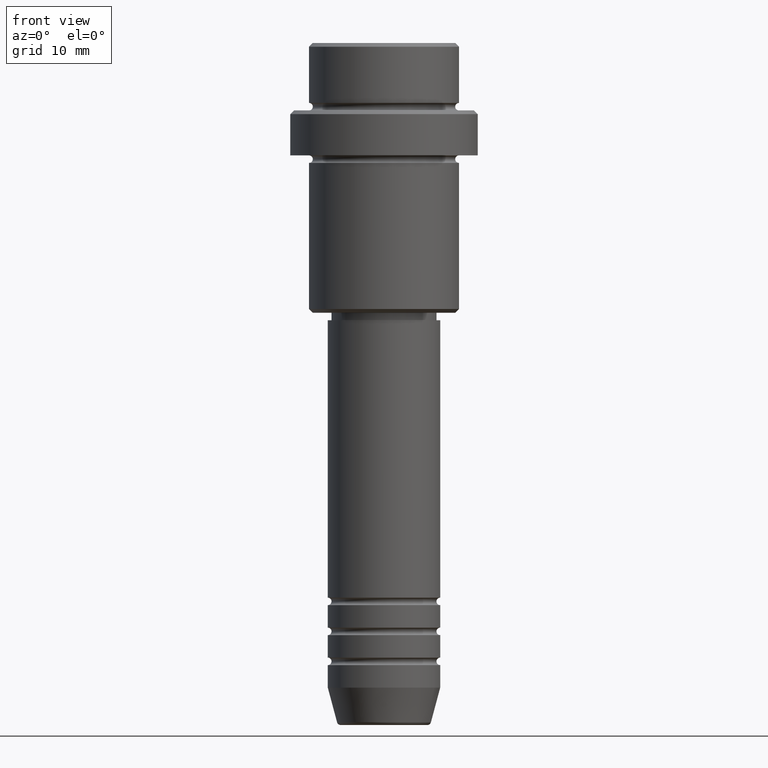
[diagram: clean part render]
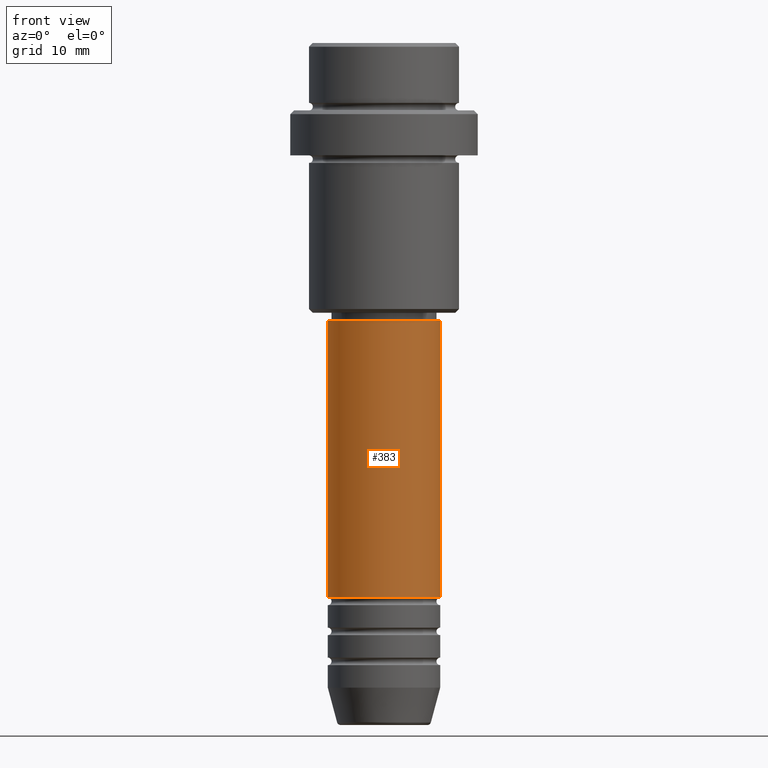
[diagram: same view with one face highlighted and labeled with its STEP entity id]
A machine part, front view. The second image highlights one B-rep face of the part: STEP entity #383.
In plain terms, the highlighted cylindrical surface (partial cylindrical patch) has radius 7.5 mm, axis along (-0, -0, 1).
Its self-contained STEP definition (entity closure, byte-faithful):
#25 = DIRECTION ( 'NONE',  ( 1.000000000000000000, 0.000000000000000000, 0.000000000000000000 ) ) ;
#50 = DIRECTION ( 'NONE',  ( 1.000000000000000000, 0.000000000000000000, 0.000000000000000000 ) ) ;
#62 = CARTESIAN_POINT ( 'NONE',  ( -7.500000000000000000, 9.184850993605147944E-16, -37.00000000000000000 ) ) ;
#109 = CIRCLE ( 'NONE', #883, 7.500000000000000000 ) ;
#152 = CIRCLE ( 'NONE', #969, 7.500000000000000000 ) ;
#228 = DIRECTION ( 'NONE',  ( -0.000000000000000000, -0.000000000000000000, 1.000000000000000000 ) ) ;
#358 = CARTESIAN_POINT ( 'NONE',  ( -7.500000000000000000, 9.184850993605147944E-16, -73.99999999999987210 ) ) ;
#365 = DIRECTION ( 'NONE',  ( -0.000000000000000000, -0.000000000000000000, 1.000000000000000000 ) ) ;
#383 = ADVANCED_FACE ( 'NONE', ( #490 ), #1341, .T. ) ;
#402 = VERTEX_POINT ( 'NONE', #358 ) ;
#440 = ORIENTED_EDGE ( 'NONE', *, *, #844, .T. ) ;
#490 = FACE_OUTER_BOUND ( 'NONE', #1105, .T. ) ;
#570 = DIRECTION ( 'NONE',  ( -0.000000000000000000, -0.000000000000000000, 1.000000000000000000 ) ) ;
#608 = CARTESIAN_POINT ( 'NONE',  ( 0.000000000000000000, 0.000000000000000000, -73.99999999999987210 ) ) ;
#627 = ORIENTED_EDGE ( 'NONE', *, *, #1374, .T. ) ;
#692 = CARTESIAN_POINT ( 'NONE',  ( 7.500000000000000000, 0.000000000000000000, -73.99999999999987210 ) ) ;
#758 = ORIENTED_EDGE ( 'NONE', *, *, #1254, .F. ) ;
#812 = CARTESIAN_POINT ( 'NONE',  ( -7.500000000000000000, 9.184850993605147944E-16, 0.000000000000000000 ) ) ;
#843 = VERTEX_POINT ( 'NONE', #953 ) ;
#844 = EDGE_CURVE ( 'NONE', #967, #843, #1271, .T. ) ;
#881 = VECTOR ( 'NONE', #1216, 1000.000000000000000 ) ;
#883 = AXIS2_PLACEMENT_3D ( 'NONE', #608, #365, #50 ) ;
#943 = AXIS2_PLACEMENT_3D ( 'NONE', #988, #228, #25 ) ;
#953 = CARTESIAN_POINT ( 'NONE',  ( 7.500000000000000000, 0.000000000000000000, -37.00000000000000000 ) ) ;
#958 = EDGE_CURVE ( 'NONE', #402, #1347, #1127, .T. ) ;
#967 = VERTEX_POINT ( 'NONE', #692 ) ;
#969 = AXIS2_PLACEMENT_3D ( 'NONE', #1109, #570, #1304 ) ;
#988 = CARTESIAN_POINT ( 'NONE',  ( 0.000000000000000000, 0.000000000000000000, 0.000000000000000000 ) ) ;
#1081 = CARTESIAN_POINT ( 'NONE',  ( 7.500000000000000000, 0.000000000000000000, 0.000000000000000000 ) ) ;
#1105 = EDGE_LOOP ( 'NONE', ( #1334, #627, #440, #758 ) ) ;
#1109 = CARTESIAN_POINT ( 'NONE',  ( 0.000000000000000000, 0.000000000000000000, -37.00000000000000000 ) ) ;
#1127 = LINE ( 'NONE', #812, #881 ) ;
#1177 = DIRECTION ( 'NONE',  ( -0.000000000000000000, -0.000000000000000000, 1.000000000000000000 ) ) ;
#1216 = DIRECTION ( 'NONE',  ( -0.000000000000000000, -0.000000000000000000, 1.000000000000000000 ) ) ;
#1247 = VECTOR ( 'NONE', #1177, 1000.000000000000000 ) ;
#1254 = EDGE_CURVE ( 'NONE', #1347, #843, #152, .T. ) ;
#1271 = LINE ( 'NONE', #1081, #1247 ) ;
#1304 = DIRECTION ( 'NONE',  ( 1.000000000000000000, 0.000000000000000000, 0.000000000000000000 ) ) ;
#1334 = ORIENTED_EDGE ( 'NONE', *, *, #958, .F. ) ;
#1341 = CYLINDRICAL_SURFACE ( 'NONE', #943, 7.500000000000000000 ) ;
#1347 = VERTEX_POINT ( 'NONE', #62 ) ;
#1374 = EDGE_CURVE ( 'NONE', #402, #967, #109, .T. ) ;